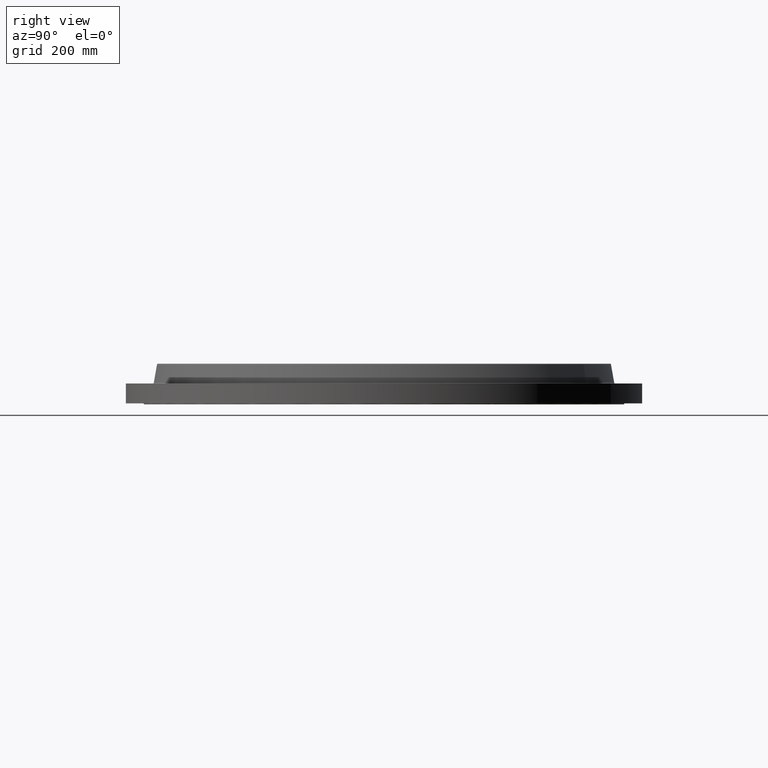
[diagram: clean part render]
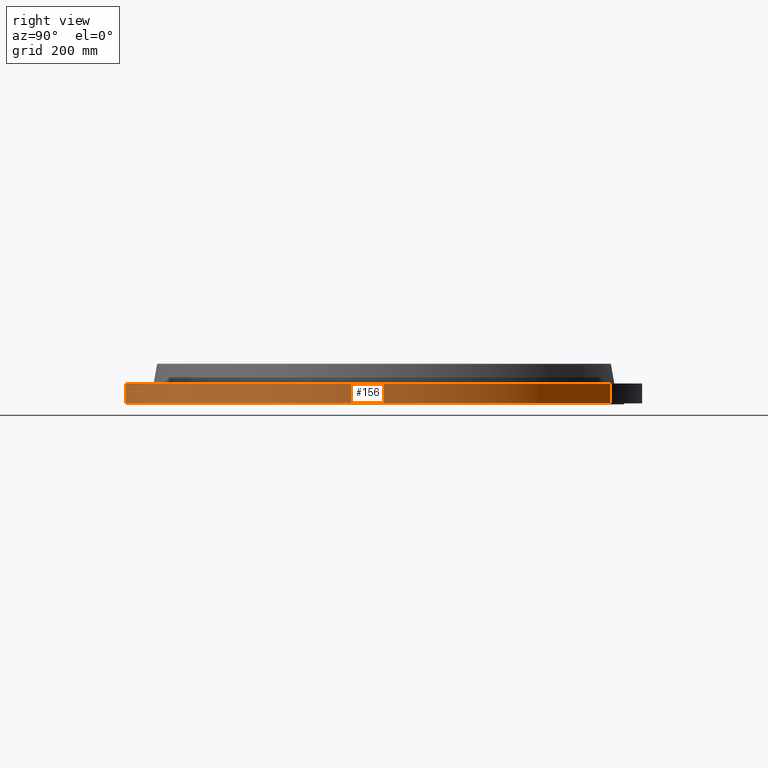
[diagram: same view with one face highlighted and labeled with its STEP entity id]
A machine part, right view. The second image highlights one B-rep face of the part: STEP entity #156.
In plain terms, the highlighted cylindrical surface (partial cylindrical patch) has radius 454.025 mm, axis along (0, 0, -1).
Its self-contained STEP definition (entity closure, byte-faithful):
#103=AXIS2_PLACEMENT_3D('Cylinder Axis2P3D',#100,#101,#102) ;
#142=AXIS2_PLACEMENT_3D('Circle Axis2P3D',#140,#141,$) ;
#147=AXIS2_PLACEMENT_3D('Circle Axis2P3D',#145,#146,$) ;
#100=CARTESIAN_POINT('Axis2P3D Location',(0.,0.,1.34375000001)) ;
#109=CARTESIAN_POINT('Vertex',(-8.56973150258,-15.6867882939,2.23792987641E-015)) ;
#111=CARTESIAN_POINT('Vertex',(8.56973150258,15.6867882939,2.23792987641E-015)) ;
#114=CARTESIAN_POINT('Line Origine',(-8.56973150258,-15.6867882939,0.690000000003)) ;
#118=CARTESIAN_POINT('Vertex',(-8.56973150258,-15.6867882939,1.38000000001)) ;
#125=CARTESIAN_POINT('Vertex',(8.56973150258,15.6867882939,1.38000000001)) ;
#128=CARTESIAN_POINT('Line Origine',(8.56973150258,15.6867882939,0.690000000003)) ;
#140=CARTESIAN_POINT('Axis2P3D Location',(0.,0.,2.23792987641E-015)) ;
#145=CARTESIAN_POINT('Axis2P3D Location',(0.,0.,1.38000000001)) ;
#101=DIRECTION('Axis2P3D Direction',(0.,0.,-0.0393700787402)) ;
#102=DIRECTION('Axis2P3D XDirection',(0.0188750212049,0.0345504945626,0.)) ;
#115=DIRECTION('Vector Direction',(0.,0.,-0.0393700787402)) ;
#129=DIRECTION('Vector Direction',(0.,0.,-0.0393700787402)) ;
#141=DIRECTION('Axis2P3D Direction',(0.,0.,-0.0393700787402)) ;
#146=DIRECTION('Axis2P3D Direction',(0.,0.,-0.0393700787402)) ;
#116=VECTOR('Line Direction',#115,0.0393700787402) ;
#130=VECTOR('Line Direction',#129,0.0393700787402) ;
#151=ORIENTED_EDGE('',*,*,#144,.F.) ;
#152=ORIENTED_EDGE('',*,*,#132,.T.) ;
#153=ORIENTED_EDGE('',*,*,#149,.T.) ;
#154=ORIENTED_EDGE('',*,*,#120,.F.) ;
#156=ADVANCED_FACE('PartBody',(#155),#104,.T.) ;
#143=CIRCLE('generated circle',#142,17.8750000001) ;
#148=CIRCLE('generated circle',#147,17.8750000001) ;
#104=CYLINDRICAL_SURFACE('generated cylinder',#103,17.8750000001) ;
#120=EDGE_CURVE('',#110,#119,#117,.F.) ;
#132=EDGE_CURVE('',#112,#126,#131,.F.) ;
#144=EDGE_CURVE('',#112,#110,#143,.T.) ;
#149=EDGE_CURVE('',#126,#119,#148,.T.) ;
#150=EDGE_LOOP('',(#151,#152,#153,#154)) ;
#155=FACE_OUTER_BOUND('',#150,.T.) ;
#117=LINE('Line',#114,#116) ;
#131=LINE('Line',#128,#130) ;
#110=VERTEX_POINT('',#109) ;
#112=VERTEX_POINT('',#111) ;
#119=VERTEX_POINT('',#118) ;
#126=VERTEX_POINT('',#125) ;